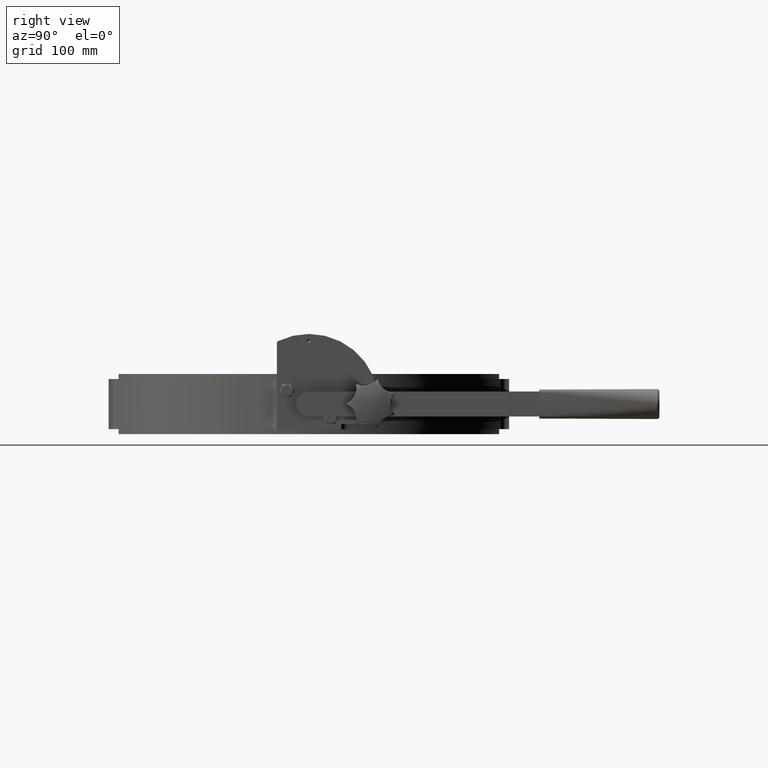
[diagram: clean part render]
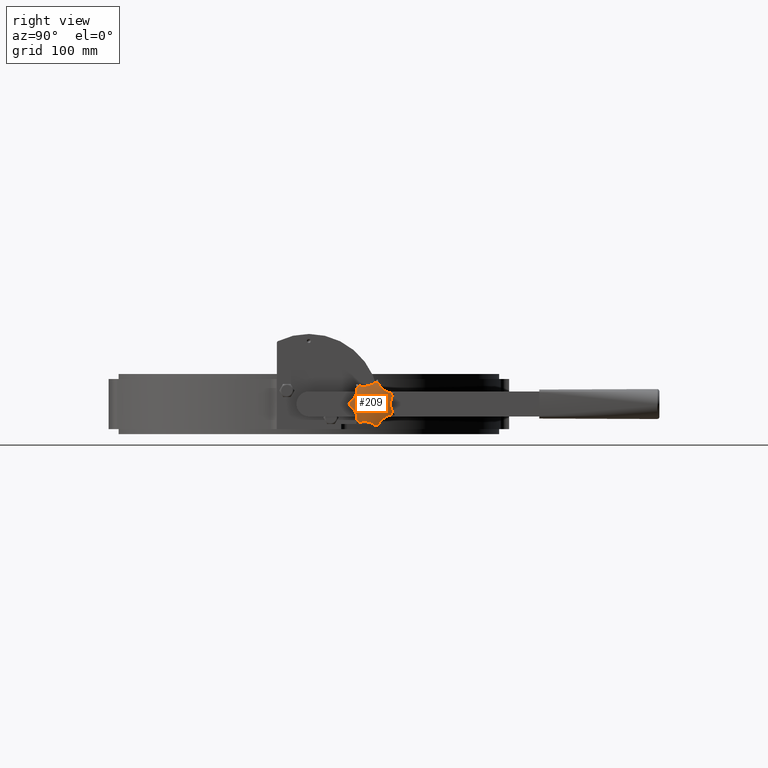
[diagram: same view with one face highlighted and labeled with its STEP entity id]
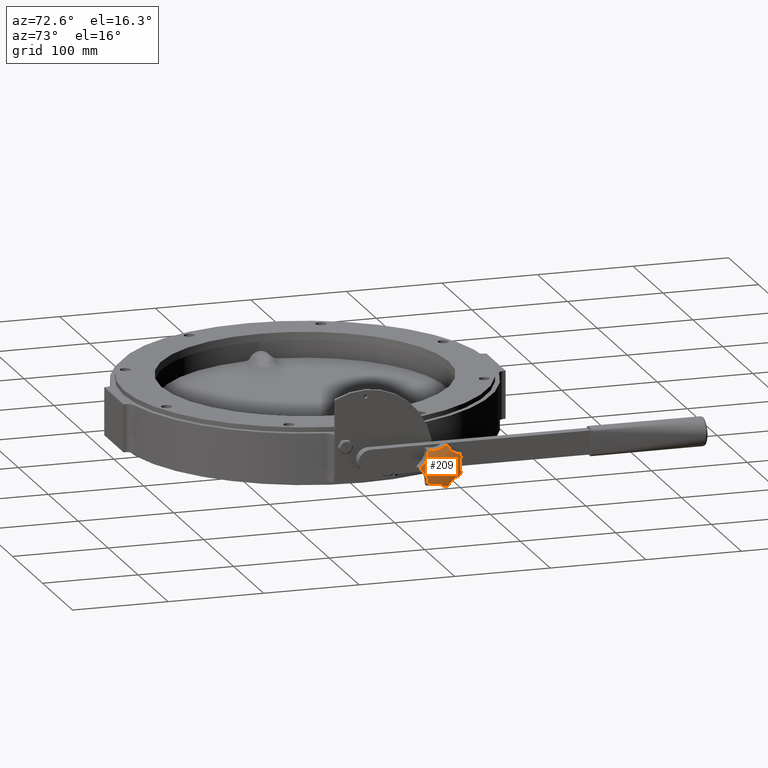
[diagram: same view with one face highlighted and labeled with its STEP entity id]
A machine part, right view. The second image highlights one B-rep face of the part: STEP entity #209.
A second angle (auxiliary view) of the same face is appended — the face is thin or edge-on in the first view.
In plain terms, the highlighted spherical surface has radius 64.0315 mm.
Its self-contained STEP definition (entity closure, byte-faithful):
#209 = ADVANCED_FACE ( 'NONE', ( #8202 ), #8203, .T. ) ;
#861 = CARTESIAN_POINT ( 'NONE',  ( 20.91721456660467000, -3.861574245612758600, 6.487176230409660100 ) ) ;
#1017 = CARTESIAN_POINT ( 'NONE',  ( 10.97904729939388000, -3.861574245612758600, 18.94924381254942600 ) ) ;
#1018 = CARTESIAN_POINT ( 'NONE',  ( 7.969791356316660500, -3.861574245612758600, 20.39842509623110400 ) ) ;
#1021 = CARTESIAN_POINT ( 'NONE',  ( 21.66043940691042000, -3.861574245612758600, 3.230895443887483100 ) ) ;
#1022 = CARTESIAN_POINT ( 'NONE',  ( 1.670011057143250500, -3.861574245612758600, -21.83630883960908900 ) ) ;
#1023 = CARTESIAN_POINT ( 'NONE',  ( 18.11354857482147600, -3.861574245612758600, -12.30904865118964300 ) ) ;
#1034 = CARTESIAN_POINT ( 'NONE',  ( 16.03107884858141200, -3.861574245612758600, -14.92038309227804000 ) ) ;
#1035 = CARTESIAN_POINT ( 'NONE',  ( -1.670011057142955400, -3.861574245612758600, -21.83630883960911000 ) ) ;
#1037 = CARTESIAN_POINT ( 'NONE',  ( -7.969791356316658700, -3.861574245612758600, 20.39842509623110400 ) ) ;
#1039 = CARTESIAN_POINT ( 'NONE',  ( -10.97904729939414100, -3.861574245612758600, 18.94924381254927300 ) ) ;
#1040 = CARTESIAN_POINT ( 'NONE',  ( -21.66043940691046300, -3.861574245612758600, 3.230895443887195700 ) ) ;
#1041 = CARTESIAN_POINT ( 'NONE',  ( -20.91721456660475900, -3.861574245612758600, 6.487176230409371400 ) ) ;
#1042 = CARTESIAN_POINT ( 'NONE',  ( -16.03107884858120300, -3.861574245612758600, -14.92038309227826400 ) ) ;
#1043 = CARTESIAN_POINT ( 'NONE',  ( -18.11354857482131600, -3.861574245612758600, -12.30904865118988100 ) ) ;
#4926 = CARTESIAN_POINT ( 'NONE',  ( 11.25460612554336000, -3.493153193781282500, 17.61973140660664700 ) ) ;
#4937 = CARTESIAN_POINT ( 'NONE',  ( 11.68036960918579400, -3.212460054017125500, 16.32763763634157400 ) ) ;
#4942 = CARTESIAN_POINT ( 'NONE',  ( 0.0000000000000000000, -3.861574245612758600, 0.0000000000000000000 ) ) ;
#4943 = DIRECTION ( 'NONE',  ( -0.0000000000000000000, 1.000000000000000000, -0.0000000000000000000 ) ) ;
#4944 = DIRECTION ( 'NONE',  ( 0.0000000000000000000, 0.0000000000000000000, 1.000000000000000000 ) ) ;
#4945 = CARTESIAN_POINT ( 'NONE',  ( 10.97904729939388000, -3.861574245612758600, 18.94924381254942600 ) ) ;
#4946 = CARTESIAN_POINT ( 'NONE',  ( 12.55596701471001700, -2.924413938147019600, 14.44961010277047800 ) ) ;
#4947 = CARTESIAN_POINT ( 'NONE',  ( 12.89048959770447700, -2.850742265786670800, 13.83003364177714500 ) ) ;
#4948 = CARTESIAN_POINT ( 'NONE',  ( 13.62343643960535800, -2.753680228354598500, 12.64715168569726000 ) ) ;
#4949 = CARTESIAN_POINT ( 'NONE',  ( 14.02296257895555200, -2.729474409341246000, 12.08025764005860100 ) ) ;
#4950 = CARTESIAN_POINT ( 'NONE',  ( 14.88753397835113100, -2.729111240833508300, 10.99513119951730300 ) ) ;
#4951 = CARTESIAN_POINT ( 'NONE',  ( 15.35257350392576500, -2.752949220112703300, 10.47689455437078000 ) ) ;
#4952 = CARTESIAN_POINT ( 'NONE',  ( 16.35037833594946100, -2.850465230035802700, 9.490718547339270100 ) ) ;
#4953 = CARTESIAN_POINT ( 'NONE',  ( 16.87382759669250000, -2.923327620418720900, 9.032235049871491800 ) ) ;
#4954 = CARTESIAN_POINT ( 'NONE',  ( 17.96016274146060400, -3.114131462163726400, 8.186747740691783900 ) ) ;
#4955 = CARTESIAN_POINT ( 'NONE',  ( 18.52417083573676100, -3.232192048829734000, 7.798662517796858900 ) ) ;
#4956 = CARTESIAN_POINT ( 'NONE',  ( 19.69286498123451400, -3.513423896162439300, 7.090376891995760800 ) ) ;
#4957 = CARTESIAN_POINT ( 'NONE',  ( 20.29965980508494600, -3.677326668147156100, 6.769480167422933900 ) ) ;
#4958 = CARTESIAN_POINT ( 'NONE',  ( 20.91721456660467000, -3.861574245612758600, 6.487176230409660100 ) ) ;
#4959 = CARTESIAN_POINT ( 'NONE',  ( 20.79279286952889900, -3.493153193781282100, 2.186517451781893500 ) ) ;
#4960 = CARTESIAN_POINT ( 'NONE',  ( 20.04805247168975400, -3.212460054017125100, 1.048034867379507200 ) ) ;
#4961 = CARTESIAN_POINT ( 'NONE',  ( 0.0000000000000000000, -3.861574245612758600, 0.0000000000000000000 ) ) ;
#4962 = DIRECTION ( 'NONE',  ( -0.0000000000000000000, 1.000000000000000000, -0.0000000000000000000 ) ) ;
#4963 = DIRECTION ( 'NONE',  ( 0.0000000000000000000, 0.0000000000000000000, 1.000000000000000000 ) ) ;
#4964 = CARTESIAN_POINT ( 'NONE',  ( 21.66043940691042000, -3.861574245612758600, 3.230895443887483100 ) ) ;
#4965 = CARTESIAN_POINT ( 'NONE',  ( 19.12567747388039800, -2.924413938147019600, -0.8074657650181442700 ) ) ;
#4966 = CARTESIAN_POINT ( 'NONE',  ( 18.84984450986817700, -2.850742265786670300, -1.455305656900806700 ) ) ;
#4967 = CARTESIAN_POINT ( 'NONE',  ( 18.38201503779131600, -2.753680228354597100, -2.765861409292951700 ) ) ;
#4968 = CARTESIAN_POINT ( 'NONE',  ( 18.18789989914818900, -2.729474409341237500, -3.431676179295985600 ) ) ;
#4969 = CARTESIAN_POINT ( 'NONE',  ( 17.87856533597639000, -2.729111240833499900, -4.784190587589655800 ) ) ;
#4970 = CARTESIAN_POINT ( 'NONE',  ( 17.76333901308924000, -2.752949220112710400, -5.470888392474244600 ) ) ;
#4971 = CARTESIAN_POINT ( 'NONE',  ( 17.61443670054952900, -2.850465230035809800, -6.865874306731005700 ) ) ;
#4972 = CARTESIAN_POINT ( 'NONE',  ( 17.58234514390094100, -2.923327620418728400, -7.560983203246218300 ) ) ;
#4973 = CARTESIAN_POINT ( 'NONE',  ( 17.59863543172069500, -3.114131462163733500, -8.937466934811906700 ) ) ;
#4974 = CARTESIAN_POINT ( 'NONE',  ( 17.64687148152779600, -3.232192048829733500, -9.620393398010866900 ) ) ;
#4975 = CARTESIAN_POINT ( 'NONE',  ( 17.82178036190676800, -3.513423896162439300, -10.97572413882720000 ) ) ;
#4976 = CARTESIAN_POINT ( 'NONE',  ( 17.94922358450628200, -3.677326668147155300, -11.65021127073313800 ) ) ;
#4977 = CARTESIAN_POINT ( 'NONE',  ( 18.11354857482147600, -3.861574245612758600, -12.30904865118964300 ) ) ;
#4978 = CARTESIAN_POINT ( 'NONE',  ( 14.67358248708109000, -3.493153193781282500, -14.89318874106232500 ) ) ;
#4979 = CARTESIAN_POINT ( 'NONE',  ( 13.31914291726882000, -3.212460054017126900, -15.02075953273458400 ) ) ;
#4980 = CARTESIAN_POINT ( 'NONE',  ( 0.0000000000000000000, -3.861574245612758600, 0.0000000000000000000 ) ) ;
#4981 = DIRECTION ( 'NONE',  ( -0.0000000000000000000, 1.000000000000000000, -0.0000000000000000000 ) ) ;
#4982 = DIRECTION ( 'NONE',  ( 0.0000000000000000000, 0.0000000000000000000, 1.000000000000000000 ) ) ;
#4983 = CARTESIAN_POINT ( 'NONE',  ( 16.03107884858141200, -3.861574245612758600, -14.92038309227804000 ) ) ;
#4984 = CARTESIAN_POINT ( 'NONE',  ( 11.29336270249739400, -2.924413938147020000, -15.45650344244821300 ) ) ;
#4985 = CARTESIAN_POINT ( 'NONE',  ( 10.61488203934675300, -2.850742265786685400, -15.64477011310708600 ) ) ;
#4986 = CARTESIAN_POINT ( 'NONE',  ( 9.298561387748117500, -2.753680228354610500, -16.09612444979479300 ) ) ;
#4987 = CARTESIAN_POINT ( 'NONE',  ( 8.656977629737149000, -2.729474409341238000, -16.35948784220375500 ) ) ;
#4988 = CARTESIAN_POINT ( 'NONE',  ( 7.406672339341502800, -2.729111240833502100, -16.96091928253865800 ) ) ;
#4989 = CARTESIAN_POINT ( 'NONE',  ( 6.797947939315217300, -2.752949220112709500, -17.29898079400076200 ) ) ;
#4990 = CARTESIAN_POINT ( 'NONE',  ( 5.614464960608141400, -2.850465230035809800, -18.05232376952060100 ) ) ;
#4991 = CARTESIAN_POINT ( 'NONE',  ( 5.050998183272773700, -2.923327620418728400, -18.46062688836984500 ) ) ;
#4992 = CARTESIAN_POINT ( 'NONE',  ( 3.984976695154606000, -3.114131462163731700, -19.33158671730145200 ) ) ;
#4993 = CARTESIAN_POINT ( 'NONE',  ( 3.481117971151783700, -3.232192048829738000, -19.79509686485454300 ) ) ;
#4994 = CARTESIAN_POINT ( 'NONE',  ( 2.530531631995681400, -3.513423896162443300, -20.77688102914269700 ) ) ;
#4995 = CARTESIAN_POINT ( 'NONE',  ( 2.082655907358853300, -3.677326668147157000, -21.29705600102645500 ) ) ;
#4996 = CARTESIAN_POINT ( 'NONE',  ( 1.670011057143250500, -3.861574245612758600, -21.83630883960908900 ) ) ;
#4997 = CARTESIAN_POINT ( 'NONE',  ( -2.495134794673001400, -3.493153193781282500, -20.75802004620119200 ) ) ;
#4998 = CARTESIAN_POINT ( 'NONE',  ( -3.439352914857620700, -3.212460054017126400, -19.77861563704420400 ) ) ;
#4999 = CARTESIAN_POINT ( 'NONE',  ( 0.0000000000000000000, -3.861574245612758600, 0.0000000000000000000 ) ) ;
#5000 = DIRECTION ( 'NONE',  ( -0.0000000000000000000, 1.000000000000000000, -0.0000000000000000000 ) ) ;
#5001 = DIRECTION ( 'NONE',  ( 0.0000000000000000000, 0.0000000000000000000, 1.000000000000000000 ) ) ;
#5002 = CARTESIAN_POINT ( 'NONE',  ( -1.670011057142955400, -3.861574245612758600, -21.83630883960911000 ) ) ;
#5003 = CARTESIAN_POINT ( 'NONE',  ( -5.043084526482623200, -2.924413938147020900, -18.46647877250356000 ) ) ;
#5004 = CARTESIAN_POINT ( 'NONE',  ( -5.613303110935941500, -2.850742265786686800, -18.05340357899229500 ) ) ;
#5005 = CARTESIAN_POINT ( 'NONE',  ( -6.786898643354655600, -2.753680228354612700, -17.30567747849915200 ) ) ;
#5006 = CARTESIAN_POINT ( 'NONE',  ( -7.392825365027601200, -2.729474409341242900, -16.96827148719592800 ) ) ;
#5007 = CARTESIAN_POINT ( 'NONE',  ( -8.642595997399228100, -2.729111240833507000, -16.36572981803430700 ) ) ;
#5008 = CARTESIAN_POINT ( 'NONE',  ( -9.286436585629994400, -2.752949220112701500, -16.10058782274486700 ) ) ;
#5009 = CARTESIAN_POINT ( 'NONE',  ( -10.61331340888480300, -2.850465230035802200, -15.64500523356516300 ) ) ;
#5010 = CARTESIAN_POINT ( 'NONE',  ( -11.28385343094582700, -2.923327620418719500, -15.45904199838918200 ) ) ;
#5011 = CARTESIAN_POINT ( 'NONE',  ( -12.62945077157348300, -3.114131462163724600, -15.16862740915846100 ) ) ;
#5012 = CARTESIAN_POINT ( 'NONE',  ( -13.30598837336719800, -3.232192048829732200, -15.06368864607427200 ) ) ;
#5013 = CARTESIAN_POINT ( 'NONE',  ( -14.66625903024629100, -3.513423896162438000, -14.93262273337805500 ) ) ;
#5014 = CARTESIAN_POINT ( 'NONE',  ( -15.35219414646810400, -3.677326668147161000, -14.90678318177548600 ) ) ;
#5015 = CARTESIAN_POINT ( 'NONE',  ( -16.03107884858120300, -3.861574245612758600, -14.92038309227826400 ) ) ;
#5016 = CARTESIAN_POINT ( 'NONE',  ( -17.78496468456407700, -3.493153193781282100, -10.99163887010881000 ) ) ;
#5017 = CARTESIAN_POINT ( 'NONE',  ( -17.60794585208247300, -3.212460054017126400, -9.642770756426827500 ) ) ;
#5018 = CARTESIAN_POINT ( 'NONE',  ( 0.0000000000000000000, -3.861574245612758600, 0.0000000000000000000 ) ) ;
#5019 = DIRECTION ( 'NONE',  ( -0.0000000000000000000, 1.000000000000000000, -0.0000000000000000000 ) ) ;
#5020 = DIRECTION ( 'NONE',  ( 0.0000000000000000000, 0.0000000000000000000, 1.000000000000000000 ) ) ;
#5021 = CARTESIAN_POINT ( 'NONE',  ( -18.11354857482131600, -3.861574245612758600, -12.30904865118988100 ) ) ;
#5022 = CARTESIAN_POINT ( 'NONE',  ( -17.58198624684436200, -2.924413938147019600, -7.570818939345216800 ) ) ;
#5023 = CARTESIAN_POINT ( 'NONE',  ( -17.61455652816764700, -2.850742265786669400, -6.867455927576164000 ) ) ;
#5024 = CARTESIAN_POINT ( 'NONE',  ( -17.76168556850909400, -2.753680228354595400, -5.483702394406306800 ) ) ;
#5025 = CARTESIAN_POINT ( 'NONE',  ( -17.87568007377167900, -2.729474409341236600, -4.799600612670160700 ) ) ;
#5026 = CARTESIAN_POINT ( 'NONE',  ( -18.18381327126853700, -2.729111240833502100, -3.446812000500833600 ) ) ;
#5027 = CARTESIAN_POINT ( 'NONE',  ( -18.37794495281147500, -2.752949220112709900, -2.778123828823840100 ) ) ;
#5028 = CARTESIAN_POINT ( 'NONE',  ( -18.84905030934856600, -2.850465230035811100, -1.456678656788120300 ) ) ;
#5029 = CARTESIAN_POINT ( 'NONE',  ( -19.12173326299955500, -2.923327620418728400, -0.8164831766331205300 ) ) ;
#5030 = CARTESIAN_POINT ( 'NONE',  ( -19.73364421346052600, -3.114131462163733500, 0.4166177216911816600 ) ) ;
#5031 = CARTESIAN_POINT ( 'NONE',  ( -20.07341408004239700, -3.232192048829733500, 1.010984366449594100 ) ) ;
#5032 = CARTESIAN_POINT ( 'NONE',  ( -20.81905750554988200, -3.513423896162439800, 2.156205050612537200 ) ) ;
#5033 = CARTESIAN_POINT ( 'NONE',  ( -21.22652888031522200, -3.677326668147156100, 2.708601416313920000 ) ) ;
#5034 = CARTESIAN_POINT ( 'NONE',  ( -21.66043940691046300, -3.861574245612758600, 3.230895443887195700 ) ) ;
#5035 = CARTESIAN_POINT ( 'NONE',  ( -19.68235341981380800, -3.493153193781283400, 7.051670563747436800 ) ) ;
#5036 = CARTESIAN_POINT ( 'NONE',  ( -18.51739642605074500, -3.212460054017124200, 7.754277180456722500 ) ) ;
#5037 = CARTESIAN_POINT ( 'NONE',  ( 0.0000000000000000000, -3.861574245612758600, 0.0000000000000000000 ) ) ;
#5038 = DIRECTION ( 'NONE',  ( -0.0000000000000000000, 1.000000000000000000, -0.0000000000000000000 ) ) ;
#5039 = DIRECTION ( 'NONE',  ( 0.0000000000000000000, 0.0000000000000000000, 1.000000000000000000 ) ) ;
#5040 = CARTESIAN_POINT ( 'NONE',  ( -20.91721456660475900, -3.861574245612758600, 6.487176230409371400 ) ) ;
#5041 = CARTESIAN_POINT ( 'NONE',  ( -16.88129371617326100, -2.924413938147018700, 9.025821971702175300 ) ) ;
#5042 = CARTESIAN_POINT ( 'NONE',  ( -16.35168960821742700, -2.850742265786671200, 9.489826107876213600 ) ) ;
#5043 = CARTESIAN_POINT ( 'NONE',  ( -15.36156098821901100, -2.753680228354597100, 10.46761243981785800 ) ) ;
#5044 = CARTESIAN_POINT ( 'NONE',  ( -14.89778308954437600, -2.729474409341243700, 10.98326741720638800 ) ) ;
#5045 = CARTESIAN_POINT ( 'NONE',  ( -14.03224826967957000, -2.729111240833508300, 12.06762555556117500 ) ) ;
#5046 = CARTESIAN_POINT ( 'NONE',  ( -13.63048592876822900, -2.752949220112704200, 12.63632407160006800 ) ) ;
#5047 = CARTESIAN_POINT ( 'NONE',  ( -12.89106787631721000, -2.850465230035802700, 13.82855665937981500 ) ) ;
#5048 = CARTESIAN_POINT ( 'NONE',  ( -12.56055793574040000, -2.923327620418720400, 14.44090413034923200 ) ) ;
#5049 = CARTESIAN_POINT ( 'NONE',  ( -11.97800106962894500, -3.114131462163723700, 15.68814121065459800 ) ) ;
#5050 = CARTESIAN_POINT ( 'NONE',  ( -11.72514956142062900, -3.232192048829733500, 16.32436553071412900 ) ) ;
#5051 = CARTESIAN_POINT ( 'NONE',  ( -11.29468104779539300, -3.513423896162439300, 17.62136645292446600 ) ) ;
#5052 = CARTESIAN_POINT ( 'NONE',  ( -11.11685442500467300, -3.677326668147155700, 18.28435390251917500 ) ) ;
#5053 = CARTESIAN_POINT ( 'NONE',  ( -10.97904729939414100, -3.861574245612758600, 18.94924381254927300 ) ) ;
#5054 = CARTESIAN_POINT ( 'NONE',  ( -6.758528583102420700, -3.493153193781283400, 19.78492823523669800 ) ) ;
#5055 = CARTESIAN_POINT ( 'NONE',  ( -5.482869805153474600, -3.212460054017131300, 19.31219624202812200 ) ) ;
#5056 = CARTESIAN_POINT ( 'NONE',  ( 0.0000000000000000000, -3.861574245612758600, 0.0000000000000000000 ) ) ;
#5057 = DIRECTION ( 'NONE',  ( -0.0000000000000000000, 1.000000000000000000, -0.0000000000000000000 ) ) ;
#5058 = DIRECTION ( 'NONE',  ( 0.0000000000000000000, 0.0000000000000000000, 1.000000000000000000 ) ) ;
#5059 = CARTESIAN_POINT ( 'NONE',  ( -7.969791356316658700, -3.861574245612758600, 20.39842509623110400 ) ) ;
#5060 = CARTESIAN_POINT ( 'NONE',  ( -3.468642701587493900, -2.924413938147024900, 18.82583484484277400 ) ) ;
#5061 = CARTESIAN_POINT ( 'NONE',  ( -2.775666899598292500, -2.850742265786677900, 18.70107552692329700 ) ) ;
#5062 = CARTESIAN_POINT ( 'NONE',  ( -1.393867665061909300, -2.753680228354603400, 18.53660160647837400 ) ) ;
#5063 = CARTESIAN_POINT ( 'NONE',  ( -0.7015515794971031200, -2.729474409341238400, 18.49551106410112300 ) ) ;
#5064 = CARTESIAN_POINT ( 'NONE',  ( 0.6858858846784325900, -2.729111240833501200, 18.49489493358525000 ) ) ;
#5065 = CARTESIAN_POINT ( 'NONE',  ( 1.381007010879610400, -2.752949220112709900, 18.53536221207313900 ) ) ;
#5066 = CARTESIAN_POINT ( 'NONE',  ( 2.774151597443602400, -2.850465230035809300, 18.70060675988606700 ) ) ;
#5067 = CARTESIAN_POINT ( 'NONE',  ( 3.458973705819740700, -2.923327620418728400, 18.82399608641789300 ) ) ;
#5068 = CARTESIAN_POINT ( 'NONE',  ( 4.797321186327258700, -3.114131462163732200, 19.14617438823450300 ) ) ;
#5069 = CARTESIAN_POINT ( 'NONE',  ( 5.452391726414101700, -3.232192048829731800, 19.34516649397933800 ) ) ;
#5070 = CARTESIAN_POINT ( 'NONE',  ( 6.734820608454838500, -3.513423896162439300, 19.81727950581543500 ) ) ;
#5071 = CARTESIAN_POINT ( 'NONE',  ( 7.364038154838155500, -3.677326668147157000, 20.09161496727930500 ) ) ;
#5072 = CARTESIAN_POINT ( 'NONE',  ( 7.969791356316660500, -3.861574245612758600, 20.39842509623110400 ) ) ;
#5850 = AXIS2_PLACEMENT_3D ( 'NONE', #8200, #8205, #8206 ) ;
#6530 = B_SPLINE_CURVE_WITH_KNOTS ( 'NONE', 3,
 ( #4945, #4926, #4937, #4946, #4947, #4948, #4949, #4950, #4951, #4952, #4953, #4954, #4955, #4956, #4957, #4958 ),
 .UNSPECIFIED., .F., .F.,
 ( 4, 2, 2, 2, 2, 2, 2, 4 ),
 ( 0.0000000000000000000, 0.004164488129849666700, 0.006246732194774501700, 0.008328976259699338500, 0.01041122032462417400, 0.01249346438954900900, 0.01457570845447384700, 0.01665795251939868400 ),
 .UNSPECIFIED. ) ;
#6531 = B_SPLINE_CURVE_WITH_KNOTS ( 'NONE', 3,
 ( #4964, #4959, #4960, #4965, #4966, #4967, #4968, #4969, #4970, #4971, #4972, #4973, #4974, #4975, #4976, #4977 ),
 .UNSPECIFIED., .F., .F.,
 ( 4, 2, 2, 2, 2, 2, 2, 4 ),
 ( 4.336808689942017700E-019, 0.004164488129849670100, 0.006246732194774506900, 0.008328976259699343700, 0.01041122032462418100, 0.01249346438954901700, 0.01457570845447385600, 0.01665795251939869400 ),
 .UNSPECIFIED. ) ;
#6532 = B_SPLINE_CURVE_WITH_KNOTS ( 'NONE', 3,
 ( #4983, #4978, #4979, #4984, #4985, #4986, #4987, #4988, #4989, #4990, #4991, #4992, #4993, #4994, #4995, #4996 ),
 .UNSPECIFIED., .F., .F.,
 ( 4, 2, 2, 2, 2, 2, 2, 4 ),
 ( 3.576224061345498000E-018, 0.004164488129849682300, 0.006246732194774519100, 0.008328976259699355900, 0.01041122032462418900, 0.01249346438954902600, 0.01457570845447386100, 0.01665795251939869800 ),
 .UNSPECIFIED. ) ;
#6533 = B_SPLINE_CURVE_WITH_KNOTS ( 'NONE', 3,
 ( #5002, #4997, #4998, #5003, #5004, #5005, #5006, #5007, #5008, #5009, #5010, #5011, #5012, #5013, #5014, #5015 ),
 .UNSPECIFIED., .F., .F.,
 ( 4, 2, 2, 2, 2, 2, 2, 4 ),
 ( 4.336808689942017700E-019, 0.004164488129849668400, 0.006246732194774501700, 0.008328976259699333300, 0.01041122032462417000, 0.01249346438954900700, 0.01457570845447384700, 0.01665795251939868400 ),
 .UNSPECIFIED. ) ;
#6534 = B_SPLINE_CURVE_WITH_KNOTS ( 'NONE', 3,
 ( #5021, #5016, #5017, #5022, #5023, #5024, #5025, #5026, #5027, #5028, #5029, #5030, #5031, #5032, #5033, #5034 ),
 .UNSPECIFIED., .F., .F.,
 ( 4, 2, 2, 2, 2, 2, 2, 4 ),
 ( 1.788112030672749000E-018, 0.004164488129849672700, 0.006246732194774507800, 0.008328976259699343700, 0.01041122032462418100, 0.01249346438954901700, 0.01457570845447385400, 0.01665795251939869400 ),
 .UNSPECIFIED. ) ;
#6535 = B_SPLINE_CURVE_WITH_KNOTS ( 'NONE', 3,
 ( #5040, #5035, #5036, #5041, #5042, #5043, #5044, #5045, #5046, #5047, #5048, #5049, #5050, #5051, #5052, #5053 ),
 .UNSPECIFIED., .F., .F.,
 ( 4, 2, 2, 2, 2, 2, 2, 4 ),
 ( 3.903127820947816000E-018, 0.004164488129849675300, 0.006246732194774508700, 0.008328976259699343700, 0.01041122032462418100, 0.01249346438954901700, 0.01457570845447385200, 0.01665795251939868700 ),
 .UNSPECIFIED. ) ;
#6536 = B_SPLINE_CURVE_WITH_KNOTS ( 'NONE', 3,
 ( #5059, #5054, #5055, #5060, #5061, #5062, #5063, #5064, #5065, #5066, #5067, #5068, #5069, #5070, #5071, #5072 ),
 .UNSPECIFIED., .F., .F.,
 ( 4, 2, 2, 2, 2, 2, 2, 4 ),
 ( 1.788112030672749000E-018, 0.004164488129849672700, 0.006246732194774506900, 0.008328976259699342000, 0.01041122032462417700, 0.01249346438954901200, 0.01457570845447384900, 0.01665795251939868400 ),
 .UNSPECIFIED. ) ;
#6850 = EDGE_CURVE ( 'NONE', #7503, #7502, #11912, .T. ) ;
#6851 = EDGE_CURVE ( 'NONE', #7502, #7349, #6530, .T. ) ;
#6852 = EDGE_CURVE ( 'NONE', #7349, #7506, #11910, .T. ) ;
#6853 = EDGE_CURVE ( 'NONE', #7506, #7508, #6531, .T. ) ;
#6854 = EDGE_CURVE ( 'NONE', #7508, #7519, #11914, .T. ) ;
#6855 = EDGE_CURVE ( 'NONE', #7519, #7507, #6532, .T. ) ;
#6856 = EDGE_CURVE ( 'NONE', #7507, #7520, #11918, .T. ) ;
#6857 = EDGE_CURVE ( 'NONE', #7520, #7527, #6533, .T. ) ;
#6858 = EDGE_CURVE ( 'NONE', #7527, #7528, #11922, .T. ) ;
#6859 = EDGE_CURVE ( 'NONE', #7528, #7525, #6534, .T. ) ;
#6860 = EDGE_CURVE ( 'NONE', #7525, #7526, #11925, .T. ) ;
#6861 = EDGE_CURVE ( 'NONE', #7526, #7524, #6535, .T. ) ;
#6862 = EDGE_CURVE ( 'NONE', #7524, #7522, #11930, .T. ) ;
#6863 = EDGE_CURVE ( 'NONE', #7522, #7503, #6536, .T. ) ;
#7349 = VERTEX_POINT ( 'NONE', #861 ) ;
#7502 = VERTEX_POINT ( 'NONE', #1017 ) ;
#7503 = VERTEX_POINT ( 'NONE', #1018 ) ;
#7506 = VERTEX_POINT ( 'NONE', #1021 ) ;
#7507 = VERTEX_POINT ( 'NONE', #1022 ) ;
#7508 = VERTEX_POINT ( 'NONE', #1023 ) ;
#7519 = VERTEX_POINT ( 'NONE', #1034 ) ;
#7520 = VERTEX_POINT ( 'NONE', #1035 ) ;
#7522 = VERTEX_POINT ( 'NONE', #1037 ) ;
#7524 = VERTEX_POINT ( 'NONE', #1039 ) ;
#7525 = VERTEX_POINT ( 'NONE', #1040 ) ;
#7526 = VERTEX_POINT ( 'NONE', #1041 ) ;
#7527 = VERTEX_POINT ( 'NONE', #1042 ) ;
#7528 = VERTEX_POINT ( 'NONE', #1043 ) ;
#8200 = CARTESIAN_POINT ( 'NONE',  ( 4.930380657631323800E-029, -64.03153802959940300, 0.0000000000000000000 ) ) ;
#8202 = FACE_OUTER_BOUND ( 'NONE', #9374, .T. ) ;
#8203 = SPHERICAL_SURFACE ( 'NONE', #5850, 64.03153802959940300 ) ;
#8205 = DIRECTION ( 'NONE',  ( 0.0000000000000000000, 0.0000000000000000000, -1.000000000000000000 ) ) ;
#8206 = DIRECTION ( 'NONE',  ( 1.000000000000000000, 0.0000000000000000000, 0.0000000000000000000 ) ) ;
#9374 = EDGE_LOOP ( 'NONE', ( #9841, #9842, #9843, #9844, #9845, #9846, #9847, #9848, #9849, #9850, #9851, #9852, #9853, #9854 ) ) ;
#9841 = ORIENTED_EDGE ( 'NONE', *, *, #6850, .T. ) ;
#9842 = ORIENTED_EDGE ( 'NONE', *, *, #6851, .T. ) ;
#9843 = ORIENTED_EDGE ( 'NONE', *, *, #6852, .T. ) ;
#9844 = ORIENTED_EDGE ( 'NONE', *, *, #6853, .T. ) ;
#9845 = ORIENTED_EDGE ( 'NONE', *, *, #6854, .T. ) ;
#9846 = ORIENTED_EDGE ( 'NONE', *, *, #6855, .T. ) ;
#9847 = ORIENTED_EDGE ( 'NONE', *, *, #6856, .T. ) ;
#9848 = ORIENTED_EDGE ( 'NONE', *, *, #6857, .T. ) ;
#9849 = ORIENTED_EDGE ( 'NONE', *, *, #6858, .T. ) ;
#9850 = ORIENTED_EDGE ( 'NONE', *, *, #6859, .T. ) ;
#9851 = ORIENTED_EDGE ( 'NONE', *, *, #6860, .T. ) ;
#9852 = ORIENTED_EDGE ( 'NONE', *, *, #6861, .T. ) ;
#9853 = ORIENTED_EDGE ( 'NONE', *, *, #6862, .T. ) ;
#9854 = ORIENTED_EDGE ( 'NONE', *, *, #6863, .T. ) ;
#11866 = AXIS2_PLACEMENT_3D ( 'NONE', #4961, #4962, #4963 ) ;
#11908 = AXIS2_PLACEMENT_3D ( 'NONE', #4942, #4943, #4944 ) ;
#11910 = CIRCLE ( 'NONE', #11866, 21.90007581424709900 ) ;
#11912 = CIRCLE ( 'NONE', #11908, 21.90007581424709900 ) ;
#11914 = CIRCLE ( 'NONE', #11916, 21.90007581424709900 ) ;
#11916 = AXIS2_PLACEMENT_3D ( 'NONE', #4980, #4981, #4982 ) ;
#11918 = CIRCLE ( 'NONE', #11920, 21.90007581424709900 ) ;
#11920 = AXIS2_PLACEMENT_3D ( 'NONE', #4999, #5000, #5001 ) ;
#11922 = CIRCLE ( 'NONE', #11924, 21.90007581424709900 ) ;
#11924 = AXIS2_PLACEMENT_3D ( 'NONE', #5018, #5019, #5020 ) ;
#11925 = CIRCLE ( 'NONE', #11927, 21.90007581424709900 ) ;
#11927 = AXIS2_PLACEMENT_3D ( 'NONE', #5037, #5038, #5039 ) ;
#11930 = CIRCLE ( 'NONE', #11932, 21.90007581424709900 ) ;
#11932 = AXIS2_PLACEMENT_3D ( 'NONE', #5056, #5057, #5058 ) ;